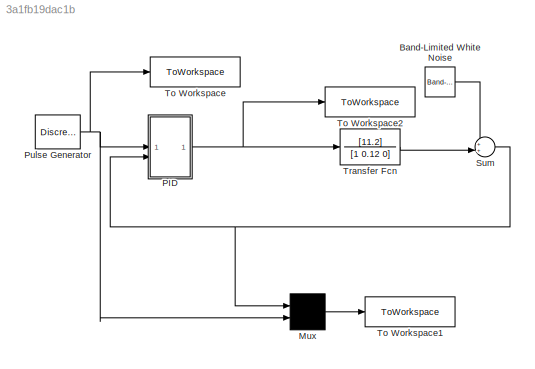
MODEL mdl_3a1fb19dac1b
KIND model
CONFIG AbsTol = 1e-6
CONFIG EnableMultiTasking = off
CONFIG FixedStep = auto
CONFIG MaxStep = auto
CONFIG MinStep = auto
CONFIG PreLoadFcn = pidDCinit
CONFIG RelTol = 1e-3
CONFIG SampleTimeConstraint = Unconstrained
CONFIG SolverName = ode45
CONFIG StartTime = 0.0
CONFIG StopTime = 50
BLOCK [Reference] Band-Limited White Noise  REF=simulink/Sources/Band-Limited
White Noise
  SourceBlock = simulink/Sources/Band-Limited\nWhite Noise
  SourceType = Band-Limited White Noise.
BLOCK [Mux] Mux
  Inputs = 2
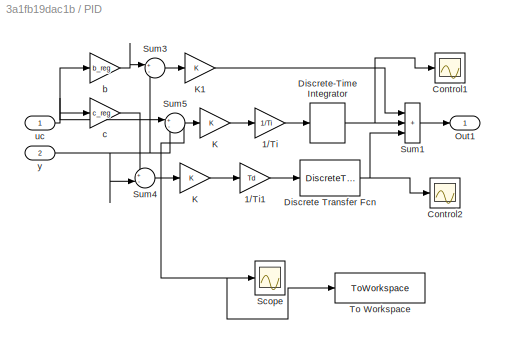
BLOCK [SubSystem] PID
  ShowPortLabels = none
BLOCK [Gain] PID/1//Ti
  Gain = 1/Ti
  OutDataTypeStr = Inherit: Same as input
  ParamDataTypeStr = Inherit: Same as input
  SaturateOnIntegerOverflow = on
BLOCK [Gain] PID/1//Ti1
  Gain = Td
  OutDataTypeStr = Inherit: Same as input
  ParamDataTypeStr = Inherit: Same as input
  SaturateOnIntegerOverflow = on
BLOCK [Scope] PID/Control1
  Floating = off
  NumInputPorts = 1
  ScopeSpecificationString = Simulink.scopes.TimeScopeBlockCfg('CurrentConfiguration', extmgr.ConfigurationSet(extmgr.Configuration('Core','General UI',true),extmgr.Configuration('Core','Source UI',true),extmgr.Configuration('Sources','WiredSimulink',true,'DataLoggingVariableName','ScopeData3','DataLoggingLimitDataPoints',true,'DataLoggingSaveFormat','Array','DataLoggingDecimation','1','DataLoggingDecimateData',true),extmgr.C...<+1891ch>
BLOCK [Scope] PID/Control2
  Floating = off
  NumInputPorts = 1
  ScopeSpecificationString = Simulink.scopes.TimeScopeBlockCfg('CurrentConfiguration', extmgr.ConfigurationSet(extmgr.Configuration('Core','General UI',true),extmgr.Configuration('Core','Source UI',true),extmgr.Configuration('Sources','WiredSimulink',true,'DataLoggingVariableName','ScopeData4','DataLoggingLimitDataPoints',true,'DataLoggingSaveFormat','Array','DataLoggingDecimation','1','DataLoggingDecimateData',true),extmgr.C...<+1897ch>
BLOCK [DiscreteTransferFcn] PID/Discrete Transfer Fcn
  Denominator = [1 -Td/(Td+10*Ts)]
  InputPortMap = u0
  Numerator = [1 -1]*1/(Td/10+Ts)
  SampleTime = Ts
BLOCK [DiscreteIntegrator] PID/Discrete-Time Integrator
  ICPrevOutput = DiscIntNeverNeededParam
  ICPrevScaledInput = DiscIntNeverNeededParam
  SampleTime = Ts
BLOCK [Gain] PID/K
  Gain = K
  OutDataTypeStr = Inherit: Same as input
  ParamDataTypeStr = Inherit: Same as input
  SaturateOnIntegerOverflow = on
BLOCK [Gain] PID/K 
  Gain = K
  OutDataTypeStr = Inherit: Same as input
  ParamDataTypeStr = Inherit: Same as input
  SaturateOnIntegerOverflow = on
BLOCK [Gain] PID/K1
  Gain = K
  OutDataTypeStr = Inherit: Same as input
  ParamDataTypeStr = Inherit: Same as input
  SaturateOnIntegerOverflow = on
BLOCK [Outport] PID/Out1
BLOCK [Scope] PID/Scope
  Floating = off
  NumInputPorts = 1
  ScopeSpecificationString = Simulink.scopes.TimeScopeBlockCfg('CurrentConfiguration', extmgr.ConfigurationSet(extmgr.Configuration('Core','General UI',true),extmgr.Configuration('Core','Source UI',true),extmgr.Configuration('Sources','WiredSimulink',true),extmgr.Configuration('Visuals','Time Domain',true,'SerializedDisplays',{struct('MinYLimReal','-2.51955','MaxYLimReal','2.50873','YLabelReal','','MinYLimMag','0.00000','MaxY...<+1449ch>
BLOCK [Sum] PID/Sum1
  IconShape = rectangular
  InputSameDT = on
  Inputs = +++
  OutDataTypeStr = Inherit: Same as first input
  SaturateOnIntegerOverflow = on
BLOCK [Sum] PID/Sum3
  InputSameDT = on
  Inputs = +-
  OutDataTypeStr = Inherit: Same as first input
  SaturateOnIntegerOverflow = on
BLOCK [Sum] PID/Sum4
  InputSameDT = on
  Inputs = +-
  OutDataTypeStr = Inherit: Same as first input
  SaturateOnIntegerOverflow = on
BLOCK [Sum] PID/Sum5
  InputSameDT = on
  Inputs = +-
  OutDataTypeStr = Inherit: Same as first input
  SaturateOnIntegerOverflow = on
BLOCK [ToWorkspace] PID/To Workspace
  FixptAsFi = on
  MaxDataPoints = inf
  SampleTime = -1
  VariableName = control_error
BLOCK [Gain] PID/b
  Gain = b_reg
  OutDataTypeStr = Inherit: Same as input
  ParamDataTypeStr = Inherit: Same as input
  SaturateOnIntegerOverflow = on
BLOCK [Gain] PID/c
  Gain = c_reg
  OutDataTypeStr = Inherit: Same as input
  ParamDataTypeStr = Inherit: Same as input
  SaturateOnIntegerOverflow = on
BLOCK [Inport] PID/uc
BLOCK [Inport] PID/y
  Port = 2
BLOCK [DiscretePulseGenerator] Pulse Generator
  Amplitude = 2
  Period = 10
  PulseType = Time based
  PulseWidth = 50
BLOCK [Sum] Sum
  InputSameDT = on
  Inputs = ++|
  OutDataTypeStr = Inherit: Same as first input
  SaturateOnIntegerOverflow = on
BLOCK [ToWorkspace] To Workspace
  FixptAsFi = on
  MaxDataPoints = inf
  SampleTime = -1
  VariableName = ref
BLOCK [ToWorkspace] To Workspace1
  FixptAsFi = on
  MaxDataPoints = inf
  SampleTime = -1
  VariableName = output
BLOCK [ToWorkspace] To Workspace2
  FixptAsFi = on
  MaxDataPoints = inf
  SampleTime = -1
  VariableName = control
BLOCK [TransferFcn] Transfer Fcn
  Denominator = [1 0.12 0]
  Numerator = [11.2]
LINE Band-Limited White Noise:1 -> Sum:1
LINE Mux:1 -> To Workspace1:1
LINE PID/1//Ti1:1 -> PID/Discrete Transfer Fcn:1
LINE PID/1//Ti:1 -> PID/Discrete-Time Integrator:1
NET PID/Discrete Transfer Fcn:1 -> PID/Control2:1, PID/Sum1:3
NET PID/Discrete-Time Integrator:1 -> PID/Control1:1, PID/Sum1:2
LINE PID/K :1 -> PID/1//Ti1:1
LINE PID/K1:1 -> PID/Sum1:1
LINE PID/K:1 -> PID/1//Ti:1
LINE PID/Sum1:1 -> PID/Out1:1
LINE PID/Sum3:1 -> PID/K1:1
LINE PID/Sum4:1 -> PID/K :1
NET PID/Sum5:1 -> PID/K:1, PID/Scope:1, PID/To Workspace:1
LINE PID/b:1 -> PID/Sum3:1
LINE PID/c:1 -> PID/Sum4:1
NET PID/uc:1 -> PID/Sum5:1, PID/b:1, PID/c:1
NET PID/y:1 -> PID/Sum3:2, PID/Sum4:2, PID/Sum5:2
NET PID:1 -> To Workspace2:1, Transfer Fcn:1
NET Pulse Generator:1 -> Mux:2, PID:1, To Workspace:1
NET Sum:1 -> Mux:1, PID:2
LINE Transfer Fcn:1 -> Sum:2
note: NET lines group one-source signal fan-out (src -> all destinations, sorted); 1:1 wires keep LINE
